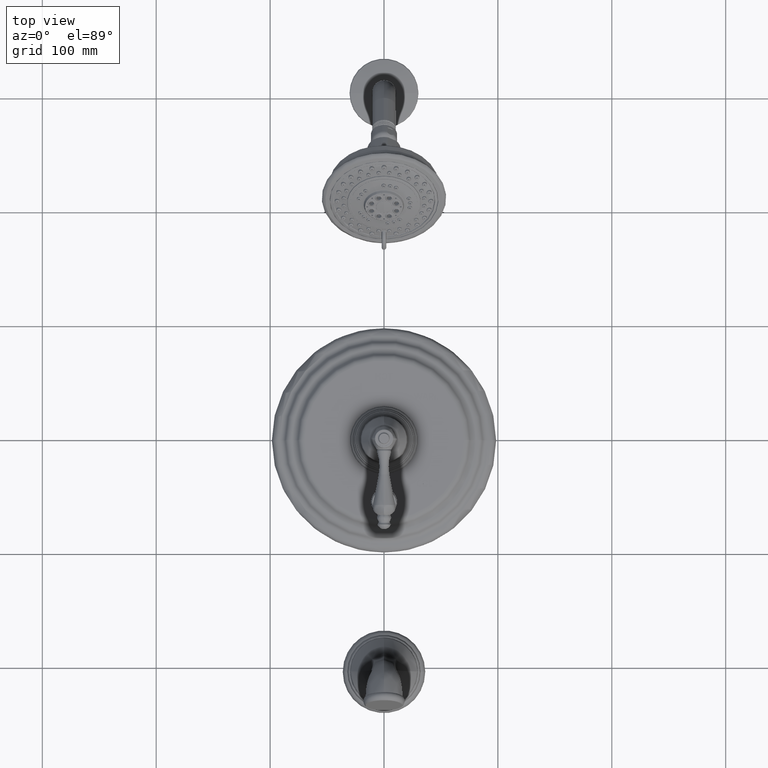
[diagram: clean part render]
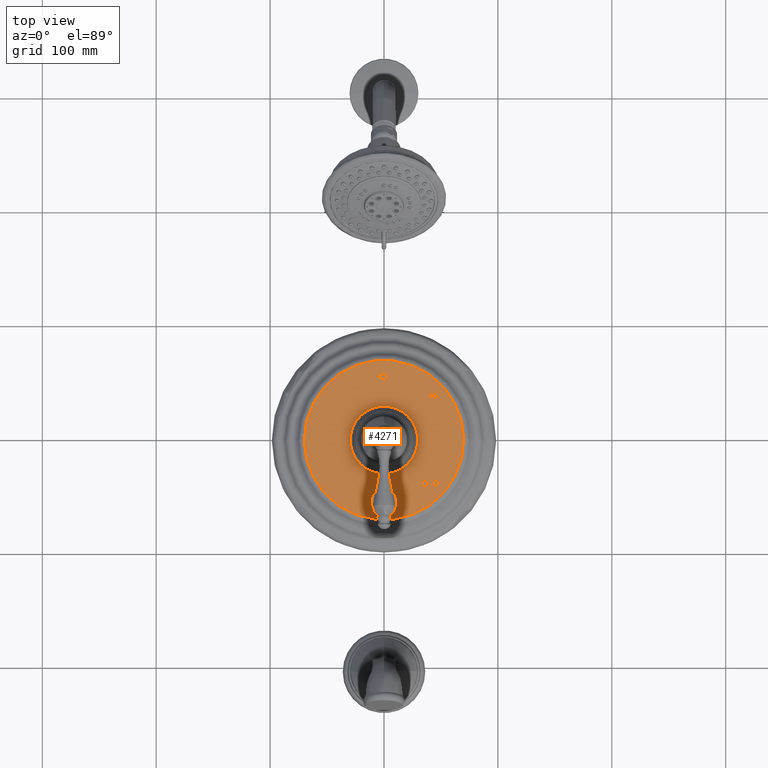
[diagram: same view with one face highlighted and labeled with its STEP entity id]
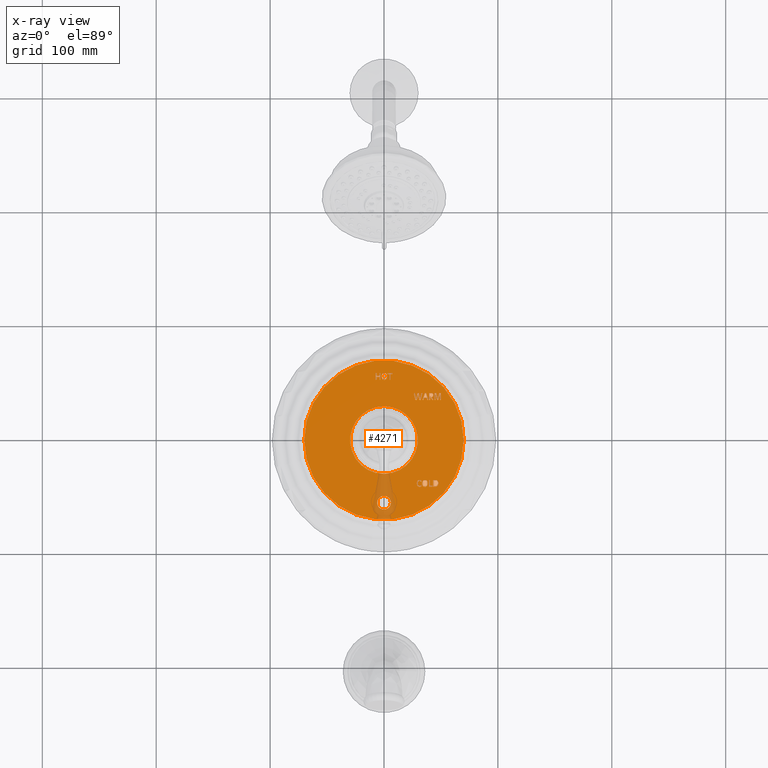
[diagram: x-ray of the same camera — body ghosted, the highlighted face saturated]
A machine part, top view. The second image highlights one B-rep face of the part: STEP entity #4271.
The next image is the same camera in x-ray: the body ghosted, the highlighted face saturated — about 4% of this face is hidden behind the body in this view.
In plain terms, the highlighted planar face has unit normal (0, 0, -1).
Its self-contained STEP definition (entity closure, byte-faithful):
#170=CARTESIAN_POINT('',(0.E0,0.E0,7.54E-1));
#171=DIRECTION('',(0.E0,0.E0,1.E0));
#172=DIRECTION('',(1.E0,0.E0,0.E0));
#173=AXIS2_PLACEMENT_3D('',#170,#171,#172);
#175=CARTESIAN_POINT('',(0.E0,0.E0,7.54E-1));
#176=DIRECTION('',(0.E0,0.E0,-1.E0));
#177=DIRECTION('',(1.E0,0.E0,0.E0));
#178=AXIS2_PLACEMENT_3D('',#175,#176,#177);
#180=DIRECTION('',(0.E0,1.E0,0.E0));
#181=VECTOR('',#180,9.709908440709E-2);
#182=CARTESIAN_POINT('',(-2.562431565225E-1,2.0875E0,7.54E-1));
#183=LINE('',#182,#181);
#184=DIRECTION('',(1.E0,0.E0,0.E0));
#185=VECTOR('',#184,1.029661081731E-1);
#186=CARTESIAN_POINT('',(-2.562431565225E-1,2.184599084407E0,7.54E-1));
#187=LINE('',#186,#185);
#188=DIRECTION('',(0.E0,-1.E0,0.E0));
#189=VECTOR('',#188,9.709908440709E-2);
#190=CARTESIAN_POINT('',(-1.532770483494E-1,2.184599084407E0,7.54E-1));
#191=LINE('',#190,#189);
#192=DIRECTION('',(0.E0,1.E0,0.E0));
#193=VECTOR('',#192,2.25E-1);
#194=CARTESIAN_POINT('',(-1.207151247859E-1,2.0875E0,7.54E-1));
#195=LINE('',#194,#193);
#196=DIRECTION('',(0.E0,-1.E0,0.E0));
#197=VECTOR('',#196,9.504563212395E-2);
#198=CARTESIAN_POINT('',(-1.532770483494E-1,2.3125E0,7.54E-1));
#199=LINE('',#198,#197);
#200=DIRECTION('',(-1.E0,0.E0,0.E0));
#201=VECTOR('',#200,1.029661081731E-1);
#202=CARTESIAN_POINT('',(-1.532770483494E-1,2.217454367876E0,7.54E-1));
#203=LINE('',#202,#201);
#204=DIRECTION('',(0.E0,1.E0,0.E0));
#205=VECTOR('',#204,9.504563212395E-2);
#206=CARTESIAN_POINT('',(-2.562431565225E-1,2.217454367876E0,7.54E-1));
#207=LINE('',#206,#205);
#208=DIRECTION('',(0.E0,-1.E0,0.E0));
#209=VECTOR('',#208,2.25E-1);
#210=CARTESIAN_POINT('',(-2.888050851151E-1,2.3125E0,7.54E-1));
#211=LINE('',#210,#209);
#212=CARTESIAN_POINT('',(1.378619086742E-2,2.082953063957E0,7.54E-1));
#213=CARTESIAN_POINT('',(4.400130224228E-2,2.082953063957E0,7.54E-1));
#214=CARTESIAN_POINT('',(6.717601728439E-2,2.093367014546E0,7.54E-1));
#215=CARTESIAN_POINT('',(8.345697215797E-2,2.114488266565E0,7.54E-1));
#217=CARTESIAN_POINT('',(8.345697215797E-2,2.114488266565E0,7.54E-1));
#218=CARTESIAN_POINT('',(9.973792743683E-2,2.135609519109E0,7.54E-1));
#219=CARTESIAN_POINT('',(1.079517633915E-1,2.165531294048E0,7.54E-1));
#220=CARTESIAN_POINT('',(1.079517633915E-1,2.204546934366E0,7.54E-1));
#222=CARTESIAN_POINT('',(1.079517633915E-1,2.204546934366E0,7.54E-1));
#223=CARTESIAN_POINT('',(1.079517633915E-1,2.243122558296E0,7.54E-1));
#224=CARTESIAN_POINT('',(1.001779706478E-1,2.271137547493E0,7.54E-1));
#225=CARTESIAN_POINT('',(8.488060532274E-2,2.289435829549E0,7.54E-1));
#227=CARTESIAN_POINT('',(8.488060532274E-2,2.289435829549E0,7.54E-1));
#228=CARTESIAN_POINT('',(6.952281606197E-2,2.307806389034E0,7.54E-1));
#229=CARTESIAN_POINT('',(4.576142144203E-2,2.317046934366E0,7.54E-1));
#230=CARTESIAN_POINT('',(1.378619086742E-2,2.317046934366E0,7.54E-1));
#232=CARTESIAN_POINT('',(1.378619086742E-2,2.317046934366E0,7.54E-1));
#233=CARTESIAN_POINT('',(-1.628225731850E-2,2.317046934366E0,7.54E-1));
#234=CARTESIAN_POINT('',(-3.945697236061E-2,2.307219682634E0,7.54E-1));
#235=CARTESIAN_POINT('',(-5.578095692654E-2,2.287748023584E0,7.54E-1));
#237=CARTESIAN_POINT('',(-5.578095692654E-2,2.287748023584E0,7.54E-1));
#238=CARTESIAN_POINT('',(-7.216557252407E-2,2.268204042315E0,7.54E-1));
#239=CARTESIAN_POINT('',(-8.023271846771E-2,2.240482392907E0,7.54E-1));
#240=CARTESIAN_POINT('',(-8.023271846771E-2,2.204546934366E0,7.54E-1));
#242=CARTESIAN_POINT('',(-8.023271846771E-2,2.204546934366E0,7.54E-1));
#243=CARTESIAN_POINT('',(-8.023271846771E-2,2.165531294048E0,7.54E-1));
#244=CARTESIAN_POINT('',(-7.216557252407E-2,2.135609519109E0,7.54E-1));
#245=CARTESIAN_POINT('',(-5.578381939503E-2,2.114452811765E0,7.54E-1));
#247=CARTESIAN_POINT('',(-5.578381939503E-2,2.114452811765E0,7.54E-1));
#248=CARTESIAN_POINT('',(-3.945697236061E-2,2.093367014546E0,7.54E-1));
#249=CARTESIAN_POINT('',(-1.628225731850E-2,2.082953063957E0,7.54E-1));
#250=CARTESIAN_POINT('',(1.378619086742E-2,2.082953063957E0,7.54E-1));
#252=DIRECTION('',(0.E0,1.E0,0.E0));
#253=VECTOR('',#252,1.921447232366E-1);
#254=CARTESIAN_POINT('',(2.244119913578E-1,2.0875E0,7.54E-1));
#255=LINE('',#254,#253);
#256=DIRECTION('',(1.E0,0.E0,0.E0));
#257=VECTOR('',#256,6.351041793823E-2);
#258=CARTESIAN_POINT('',(2.244119913578E-1,2.279644723237E0,7.54E-1));
#259=LINE('',#258,#257);
#260=DIRECTION('',(-1.E0,0.E0,0.E0));
#261=VECTOR('',#260,1.595827728510E-1);
#262=CARTESIAN_POINT('',(2.879224092960E-1,2.3125E0,7.54E-1));
#263=LINE('',#262,#261);
#264=DIRECTION('',(1.E0,0.E0,0.E0));
#265=VECTOR('',#264,6.351044476032E-2);
#266=CARTESIAN_POINT('',(1.283396364450E-1,2.279644723237E0,7.54E-1));
#267=LINE('',#266,#265);
#268=DIRECTION('',(0.E0,-1.E0,0.E0));
#269=VECTOR('',#268,1.921447232366E-1);
#270=CARTESIAN_POINT('',(1.918500812054E-1,2.279644723237E0,7.54E-1));
#271=LINE('',#270,#269);
#272=DIRECTION('',(2.471631249759E-1,9.689738849175E-1,0.E0));
#273=VECTOR('',#272,1.863387326800E-1);
#274=CARTESIAN_POINT('',(1.132885919690E0,1.3875E0,7.54E-1));
#275=LINE('',#274,#273);
#276=DIRECTION('',(2.486403882739E-1,-9.685958689355E-1,0.E0));
#277=VECTOR('',#276,1.864114554958E-1);
#278=CARTESIAN_POINT('',(1.178941983163E0,1.568057365716E0,7.54E-1));
#279=LINE('',#278,#277);
#280=DIRECTION('',(2.350740426959E-1,9.719774660200E-1,0.E0));
#281=VECTOR('',#280,2.314868480659E-1);
#282=CARTESIAN_POINT('',(1.270320727110E0,1.3875E0,7.54E-1));
#283=LINE('',#282,#281);
#284=DIRECTION('',(-2.140864556208E-1,-9.768147160643E-1,0.E0));
#285=VECTOR('',#284,2.021110339290E-1);
#286=CARTESIAN_POINT('',(1.290561936975E0,1.6125E0,7.54E-1));
#287=LINE('',#286,#285);
#288=DIRECTION('',(-2.258108426649E-1,9.741711673700E-1,0.E0));
#289=VECTOR('',#288,2.026594902760E-1);
#290=CARTESIAN_POINT('',(1.247292702079E0,1.415074967779E0,7.54E-1));
#291=LINE('',#290,#289);
#292=DIRECTION('',(-2.251238204180E-1,-9.743301624605E-1,0.E0));
#293=VECTOR('',#292,2.026264194903E-1);
#294=CARTESIAN_POINT('',(1.156500651121E0,1.6125E0,7.54E-1));
#295=LINE('',#294,#293);
#296=DIRECTION('',(-2.154707147848E-1,9.765103025929E-1,0.E0));
#297=VECTOR('',#296,2.021740392258E-1);
#298=CARTESIAN_POINT('',(1.110884617448E0,1.415074967779E0,7.54E-1));
#299=LINE('',#298,#297);
#300=DIRECTION('',(2.356725604190E-1,-9.718325186294E-1,0.E0));
#301=VECTOR('',#300,2.315213739887E-1);
#302=CARTESIAN_POINT('',(1.033293350712E0,1.6125E0,7.54E-1));
#303=LINE('',#302,#301);
#304=DIRECTION('',(2.805984983665E-1,9.598252355062E-1,0.E0));
#305=VECTOR('',#304,6.586311321142E-2);
#306=CARTESIAN_POINT('',(1.364632989645E0,1.3875E0,7.54E-1));
#307=LINE('',#306,#305);
#308=DIRECTION('',(1.E0,0.E0,0.E0));
#309=VECTOR('',#308,9.548564851284E-2);
#310=CARTESIAN_POINT('',(1.383114080310E0,1.450717078149E0,7.54E-1));
#311=LINE('',#310,#309);
#312=DIRECTION('',(2.826484077094E-1,-9.592235806210E-1,0.E0));
#313=VECTOR('',#312,6.590442460599E-2);
#314=CARTESIAN_POINT('',(1.478599728823E0,1.450717078149E0,7.54E-1));
#315=LINE('',#314,#313);
#316=DIRECTION('',(-3.025880960358E-1,9.531214215080E-1,0.E0));
#317=VECTOR('',#316,2.360664600781E-1);
#318=CARTESIAN_POINT('',(1.530082799673E0,1.3875E0,7.54E-1));
#319=LINE('',#318,#317);
#320=DIRECTION('',(-3.025880960358E-1,-9.531214215080E-1,0.E0));
#321=VECTOR('',#320,2.360664600781E-1);
#322=CARTESIAN_POINT('',(1.403941969752E0,1.6125E0,7.54E-1));
#323=LINE('',#322,#321);
#324=DIRECTION('',(0.E0,1.E0,0.E0));
#325=VECTOR('',#324,1.132333829999E-1);
#326=CARTESIAN_POINT('',(1.592419804811E0,1.3875E0,7.54E-1));
#327=LINE('',#326,#325);
#328=DIRECTION('',(5.767248157452E-1,-8.169384841613E-1,0.E0));
#329=VECTOR('',#328,1.386069884027E-1);
#330=CARTESIAN_POINT('',(1.592419804811E0,1.500733383E0,7.54E-1));
#331=LINE('',#330,#329);
#332=DIRECTION('',(-5.856708214231E-1,8.105490046466E-1,0.E0));
#333=VECTOR('',#332,1.187084774229E-1);
#334=CARTESIAN_POINT('',(1.710053445578E0,1.3875E0,7.54E-1));
#335=LINE('',#334,#333);
#336=CARTESIAN_POINT('',(1.640529354095E0,1.483719038218E0,7.54E-1));
#337=CARTESIAN_POINT('',(1.663264025927E0,1.483865708113E0,7.54E-1));
#338=CARTESIAN_POINT('',(1.680571730614E0,1.489586048573E0,7.54E-1));
#339=CARTESIAN_POINT('',(1.692269027760E0,1.501064029419E0,7.54E-1));
#341=CARTESIAN_POINT('',(1.692269027760E0,1.501064029419E0,7.54E-1));
#342=CARTESIAN_POINT('',(1.704039772034E0,1.512614080310E0,7.54E-1));
#343=CARTESIAN_POINT('',(1.710053445578E0,1.530068448186E0,7.54E-1));
#344=CARTESIAN_POINT('',(1.710053445578E0,1.553243149817E0,7.54E-1));
#346=CARTESIAN_POINT('',(1.710053445578E0,1.553243149817E0,7.54E-1));
#347=CARTESIAN_POINT('',(1.710053445578E0,1.572164270282E0,7.54E-1));
#348=CARTESIAN_POINT('',(1.704333098412E0,1.586831809580E0,7.54E-1));
#349=CARTESIAN_POINT('',(1.693152421370E0,1.597062511531E0,7.54E-1));
#351=CARTESIAN_POINT('',(1.693152421370E0,1.597062511531E0,7.54E-1));
#352=CARTESIAN_POINT('',(1.681891806602E0,1.607366359234E0,7.54E-1));
#353=CARTESIAN_POINT('',(1.665904177904E0,1.6125E0,7.54E-1));
#354=CARTESIAN_POINT('',(1.645076288462E0,1.6125E0,7.54E-1));
#356=DIRECTION('',(0.E0,-1.E0,0.E0));
#357=VECTOR('',#356,2.25E-1);
#358=CARTESIAN_POINT('',(1.559857894659E0,1.6125E0,7.54E-1));
#359=LINE('',#358,#357);
#360=DIRECTION('',(0.E0,1.E0,0.E0));
#361=VECTOR('',#360,2.022653147578E-1);
#362=CARTESIAN_POINT('',(1.781777699471E0,1.3875E0,7.54E-1));
#363=LINE('',#362,#361);
#364=DIRECTION('',(2.779397959020E-1,-9.605984956546E-1,0.E0));
#365=VECTOR('',#364,2.105617650588E-1);
#366=CARTESIAN_POINT('',(1.781777699471E0,1.589765314758E0,7.54E-1));
#367=LINE('',#366,#365);
#368=DIRECTION('',(2.701996726704E-1,9.628043087195E-1,0.E0));
#369=VECTOR('',#368,2.100793618454E-1);
#370=CARTESIAN_POINT('',(1.876089962006E0,1.3875E0,7.54E-1));
#371=LINE('',#370,#369);
#372=DIRECTION('',(7.976409810612E-3,-9.999681879373E-1,0.E0));
#373=VECTOR('',#372,2.022717494394E-1);
#374=CARTESIAN_POINT('',(1.932853336811E0,1.589765314758E0,7.54E-1));
#375=LINE('',#374,#373);
#376=DIRECTION('',(0.E0,1.E0,0.E0));
#377=VECTOR('',#376,2.25E-1);
#378=CARTESIAN_POINT('',(1.967028649330E0,1.3875E0,7.54E-1));
#379=LINE('',#378,#377);
#380=DIRECTION('',(-2.528694129050E-1,-9.675004186134E-1,0.E0));
#381=VECTOR('',#380,1.867741231311E-1);
#382=CARTESIAN_POINT('',(1.907185132980E0,1.6125E0,7.54E-1));
#383=LINE('',#382,#381);
#384=DIRECTION('',(-2.711076405589E-1,9.625490362733E-1,0.E0));
#385=VECTOR('',#384,1.877348950606E-1);
#386=CARTESIAN_POINT('',(1.859955670118E0,1.431795957685E0,7.54E-1));
#387=LINE('',#386,#385);
#388=DIRECTION('',(0.E0,-1.E0,0.E0));
#389=VECTOR('',#388,2.25E-1);
#390=CARTESIAN_POINT('',(1.749215789318E0,1.6125E0,7.54E-1));
#391=LINE('',#390,#389);
#392=DIRECTION('',(0.E0,1.E0,0.E0));
#393=VECTOR('',#392,3.710886798799E-2);
#394=CARTESIAN_POINT('',(1.295083437383E0,-1.586685136333E0,7.54E-1));
#395=LINE('',#394,#393);
#396=CARTESIAN_POINT('',(1.295083437383E0,-1.549576268345E0,7.54E-1));
#397=CARTESIAN_POINT('',(1.281882664084E0,-1.564097131044E0,7.54E-1));
#398=CARTESIAN_POINT('',(1.270441983163E0,-1.574071056023E0,7.54E-1));
#399=CARTESIAN_POINT('',(1.261035918825E0,-1.579612613773E0,7.54E-1));
#401=CARTESIAN_POINT('',(1.261035918825E0,-1.579612613773E0,7.54E-1));
#402=CARTESIAN_POINT('',(1.251520862699E0,-1.585218383744E0,7.54E-1));
#403=CARTESIAN_POINT('',(1.240960241377E0,-1.587858539075E0,7.54E-1));
#404=CARTESIAN_POINT('',(1.229372883856E0,-1.587858539075E0,7.54E-1));
#406=CARTESIAN_POINT('',(1.229372883856E0,-1.587858539075E0,7.54E-1));
#407=CARTESIAN_POINT('',(1.210158410192E0,-1.587858539075E0,7.54E-1));
#408=CARTESIAN_POINT('',(1.195344200999E0,-1.580231419578E0,7.54E-1));
#409=CARTESIAN_POINT('',(1.184879900615E0,-1.564717914511E0,7.54E-1));
#411=CARTESIAN_POINT('',(1.184879900615E0,-1.564717914511E0,7.54E-1));
#412=CARTESIAN_POINT('',(1.174369621545E0,-1.549136245251E0,7.54E-1));
#413=CARTESIAN_POINT('',(1.169235984132E0,-1.527134943008E0,7.54E-1));
#414=CARTESIAN_POINT('',(1.169235984132E0,-1.498533247411E0,7.54E-1));
#416=CARTESIAN_POINT('',(1.169235984132E0,-1.498533247411E0,7.54E-1));
#417=CARTESIAN_POINT('',(1.169235984132E0,-1.472131687403E0,7.54E-1));
#418=CARTESIAN_POINT('',(1.174369621545E0,-1.451743800938E0,7.54E-1));
#419=CARTESIAN_POINT('',(1.184882326665E0,-1.437334786480E0,7.54E-1));
#421=CARTESIAN_POINT('',(1.184882326665E0,-1.437334786480E0,7.54E-1));
#422=CARTESIAN_POINT('',(1.195344200999E0,-1.422995442152E0,7.54E-1));
#423=CARTESIAN_POINT('',(1.210158410192E0,-1.415808342397E0,7.54E-1));
#424=CARTESIAN_POINT('',(1.229372883856E0,-1.415808342397E0,7.54E-1));
#426=CARTESIAN_POINT('',(1.229372883856E0,-1.415808342397E0,7.54E-1));
#427=CARTESIAN_POINT('',(1.243747069955E0,-1.415808342397E0,7.54E-1));
#428=CARTESIAN_POINT('',(1.256654503465E0,-1.419181877375E0,7.54E-1));
#429=CARTESIAN_POINT('',(1.268095175639E0,-1.425928939420E0,7.54E-1));
#431=CARTESIAN_POINT('',(1.268095175639E0,-1.425928939420E0,7.54E-1));
#432=CARTESIAN_POINT('',(1.279535851896E0,-1.432676003873E0,7.54E-1));
#433=CARTESIAN_POINT('',(1.288483057439E0,-1.442209902406E0,7.54E-1));
#434=CARTESIAN_POINT('',(1.295083437383E0,-1.454530642927E0,7.54E-1));
#436=DIRECTION('',(0.E0,1.E0,0.E0));
#437=VECTOR('',#436,4.458931088448E-2);
#438=CARTESIAN_POINT('',(1.295083437383E0,-1.454530642927E0,7.54E-1));
#439=LINE('',#438,#437);
#440=CARTESIAN_POINT('',(1.295083437383E0,-1.409941332042E0,7.54E-1));
#441=CARTESIAN_POINT('',(1.287456321239E0,-1.400847463310E0,7.54E-1));
#442=CARTESIAN_POINT('',(1.278215775907E0,-1.394100393355E0,7.54E-1));
#443=CARTESIAN_POINT('',(1.267068450476E0,-1.389700129787E0,7.54E-1));
#445=CARTESIAN_POINT('',(1.267068450476E0,-1.389700129787E0,7.54E-1));
#446=CARTESIAN_POINT('',(1.255921120465E0,-1.385299864411E0,7.54E-1));
#447=CARTESIAN_POINT('',(1.242867010355E0,-1.382953065634E0,7.54E-1));
#448=CARTESIAN_POINT('',(1.227759454668E0,-1.382953065634E0,7.54E-1));
#450=CARTESIAN_POINT('',(1.227759454668E0,-1.382953065634E0,7.54E-1));
#451=CARTESIAN_POINT('',(1.198571059376E0,-1.382953065634E0,7.54E-1));
#452=CARTESIAN_POINT('',(1.176129727334E0,-1.392780317366E0,7.54E-1));
#453=CARTESIAN_POINT('',(1.160288791423E0,-1.412288133074E0,7.54E-1));
#455=CARTESIAN_POINT('',(1.160288791423E0,-1.412288133074E0,7.54E-1));
#456=CARTESIAN_POINT('',(1.144447848283E0,-1.431795957685E0,7.54E-1));
#457=CARTESIAN_POINT('',(1.136674054701E0,-1.459517607093E0,7.54E-1));
#458=CARTESIAN_POINT('',(1.136674054701E0,-1.495453065634E0,7.54E-1));
#460=CARTESIAN_POINT('',(1.136674054701E0,-1.495453065634E0,7.54E-1));
#461=CARTESIAN_POINT('',(1.136674054701E0,-1.534468705952E0,7.54E-1));
#462=CARTESIAN_POINT('',(1.144447848283E0,-1.564390480891E0,7.54E-1));
#463=CARTESIAN_POINT('',(1.160288788311E0,-1.585511733843E0,7.54E-1));
#465=CARTESIAN_POINT('',(1.160288788311E0,-1.585511733843E0,7.54E-1));
#466=CARTESIAN_POINT('',(1.176129727334E0,-1.606632985454E0,7.54E-1));
#467=CARTESIAN_POINT('',(1.198571059376E0,-1.617046936043E0,7.54E-1));
#468=CARTESIAN_POINT('',(1.227759454668E0,-1.617046936043E0,7.54E-1));
#470=CARTESIAN_POINT('',(1.227759454668E0,-1.617046936043E0,7.54E-1));
#471=CARTESIAN_POINT('',(1.241253581166E0,-1.617046936043E0,7.54E-1));
#472=CARTESIAN_POINT('',(1.254014338076E0,-1.614260104322E0,7.54E-1));
#473=CARTESIAN_POINT('',(1.265721021855E0,-1.609065262664E0,7.54E-1));
#475=CARTESIAN_POINT('',(1.265721021855E0,-1.609065262664E0,7.54E-1));
#476=CARTESIAN_POINT('',(1.277482392907E0,-1.603846153524E0,7.54E-1));
#477=CARTESIAN_POINT('',(1.287309644639E0,-1.596365709789E0,7.54E-1));
#478=CARTESIAN_POINT('',(1.295083437383E0,-1.586685136333E0,7.54E-1));
#480=CARTESIAN_POINT('',(1.414917200327E0,-1.617046936043E0,7.54E-1));
#481=CARTESIAN_POINT('',(1.445132338524E0,-1.617046936043E0,7.54E-1));
#482=CARTESIAN_POINT('',(1.468307053566E0,-1.606632985454E0,7.54E-1));
#483=CARTESIAN_POINT('',(1.484588008440E0,-1.585511733435E0,7.54E-1));
#485=CARTESIAN_POINT('',(1.484588008440E0,-1.585511733435E0,7.54E-1));
#486=CARTESIAN_POINT('',(1.500868963718E0,-1.564390480891E0,7.54E-1));
#487=CARTESIAN_POINT('',(1.509082799673E0,-1.534468705952E0,7.54E-1));
#488=CARTESIAN_POINT('',(1.509082799673E0,-1.495453065634E0,7.54E-1));
#490=CARTESIAN_POINT('',(1.509082799673E0,-1.495453065634E0,7.54E-1));
#491=CARTESIAN_POINT('',(1.509082799673E0,-1.456877441704E0,7.54E-1));
#492=CARTESIAN_POINT('',(1.501309006929E0,-1.428862452507E0,7.54E-1));
#493=CARTESIAN_POINT('',(1.486011630539E0,-1.410564157215E0,7.54E-1));
#495=CARTESIAN_POINT('',(1.486011630539E0,-1.410564157215E0,7.54E-1));
#496=CARTESIAN_POINT('',(1.470653852344E0,-1.392193610966E0,7.54E-1));
#497=CARTESIAN_POINT('',(1.446892430902E0,-1.382953065634E0,7.54E-1));
#498=CARTESIAN_POINT('',(1.414917200327E0,-1.382953065634E0,7.54E-1));
#500=CARTESIAN_POINT('',(1.414917200327E0,-1.382953065634E0,7.54E-1));
#501=CARTESIAN_POINT('',(1.384848752141E0,-1.382953065634E0,7.54E-1));
#502=CARTESIAN_POINT('',(1.361674063921E0,-1.392780317366E0,7.54E-1));
#503=CARTESIAN_POINT('',(1.345350069889E0,-1.412251979724E0,7.54E-1));
#505=CARTESIAN_POINT('',(1.345350069889E0,-1.412251979724E0,7.54E-1));
#506=CARTESIAN_POINT('',(1.328965450346E0,-1.431795957685E0,7.54E-1));
#507=CARTESIAN_POINT('',(1.320898304403E0,-1.459517607093E0,7.54E-1));
#508=CARTESIAN_POINT('',(1.320898304403E0,-1.495453065634E0,7.54E-1));
#510=CARTESIAN_POINT('',(1.320898304403E0,-1.495453065634E0,7.54E-1));
#511=CARTESIAN_POINT('',(1.320898304403E0,-1.534468705952E0,7.54E-1));
#512=CARTESIAN_POINT('',(1.328965450346E0,-1.564390480891E0,7.54E-1));
#513=CARTESIAN_POINT('',(1.345347207689E0,-1.585547185002E0,7.54E-1));
#515=CARTESIAN_POINT('',(1.345347207689E0,-1.585547185002E0,7.54E-1));
#516=CARTESIAN_POINT('',(1.361674063921E0,-1.606632985454E0,7.54E-1));
#517=CARTESIAN_POINT('',(1.384848752141E0,-1.617046936043E0,7.54E-1));
#518=CARTESIAN_POINT('',(1.414917200327E0,-1.617046936043E0,7.54E-1));
#520=DIRECTION('',(1.E0,0.E0,0.E0));
#521=VECTOR('',#520,1.173402875662E-1);
#522=CARTESIAN_POINT('',(1.553378757358E0,-1.6125E0,7.54E-1));
#523=LINE('',#522,#521);
#524=DIRECTION('',(-1.E0,0.E0,0.E0));
#525=VECTOR('',#524,8.477835059166E-2);
#526=CARTESIAN_POINT('',(1.670719044924E0,-1.579644719884E0,7.54E-1));
#527=LINE('',#526,#525);
#528=DIRECTION('',(0.E0,1.E0,0.E0));
#529=VECTOR('',#528,1.921447198838E-1);
#530=CARTESIAN_POINT('',(1.585940694332E0,-1.579644719884E0,7.54E-1));
#531=LINE('',#530,#529);
#532=DIRECTION('',(0.E0,-1.E0,0.E0));
#533=VECTOR('',#532,2.25E-1);
#534=CARTESIAN_POINT('',(1.553378757358E0,-1.3875E0,7.54E-1));
#535=LINE('',#534,#533);
#536=CARTESIAN_POINT('',(1.772071730614E0,-1.6125E0,7.54E-1));
#537=CARTESIAN_POINT('',(1.803753607988E0,-1.6125E0,7.54E-1));
#538=CARTESIAN_POINT('',(1.828835051775E0,-1.602086049411E0,7.54E-1));
#539=CARTESIAN_POINT('',(1.847457946183E0,-1.580960492826E0,7.54E-1));
#541=CARTESIAN_POINT('',(1.847457946183E0,-1.580960492826E0,7.54E-1));
#542=CARTESIAN_POINT('',(1.865943949938E0,-1.559990223125E0,7.54E-1));
#543=CARTESIAN_POINT('',(1.875331145048E0,-1.531535200775E0,7.54E-1));
#544=CARTESIAN_POINT('',(1.875331145048E0,-1.495599742234E0,7.54E-1));
#546=CARTESIAN_POINT('',(1.875331145048E0,-1.495599742234E0,7.54E-1));
#547=CARTESIAN_POINT('',(1.875331145048E0,-1.458490870893E0,7.54E-1));
#548=CARTESIAN_POINT('',(1.867850732327E0,-1.431649281085E0,7.54E-1));
#549=CARTESIAN_POINT('',(1.852805563462E0,-1.414120935881E0,7.54E-1));
#551=CARTESIAN_POINT('',(1.852805563462E0,-1.414120935881E0,7.54E-1));
#552=CARTESIAN_POINT('',(1.837635594130E0,-1.396447192132E0,7.54E-1));
#553=CARTESIAN_POINT('',(1.814314215899E0,-1.3875E0,7.54E-1));
#554=CARTESIAN_POINT('',(1.782925664902E0,-1.3875E0,7.54E-1));
#556=DIRECTION('',(0.E0,-1.E0,0.E0));
#557=VECTOR('',#556,2.25E-1);
#558=CARTESIAN_POINT('',(1.701520835876E0,-1.3875E0,7.54E-1));
#559=LINE('',#558,#557);
#560=CARTESIAN_POINT('',(0.E0,0.E0,7.54E-1));
#561=DIRECTION('',(0.E0,0.E0,-1.E0));
#562=DIRECTION('',(0.E0,1.E0,0.E0));
#563=AXIS2_PLACEMENT_3D('',#560,#561,#562);
#565=CARTESIAN_POINT('',(0.E0,0.E0,7.54E-1));
#566=DIRECTION('',(0.E0,0.E0,-1.E0));
#567=DIRECTION('',(0.E0,-1.E0,0.E0));
#568=AXIS2_PLACEMENT_3D('',#565,#566,#567);
#570=CARTESIAN_POINT('',(0.E0,-2.17E0,7.54E-1));
#571=DIRECTION('',(0.E0,0.E0,1.E0));
#572=DIRECTION('',(-1.E0,0.E0,0.E0));
#573=AXIS2_PLACEMENT_3D('',#570,#571,#572);
#575=CARTESIAN_POINT('',(0.E0,-2.17E0,7.54E-1));
#576=DIRECTION('',(0.E0,0.E0,1.E0));
#577=DIRECTION('',(1.E0,0.E0,0.E0));
#578=AXIS2_PLACEMENT_3D('',#575,#576,#577);
#684=DIRECTION('',(-1.E0,0.E0,0.E0));
#685=VECTOR('',#684,3.256192859262E-2);
#686=CARTESIAN_POINT('',(-2.562431565225E-1,2.0875E0,7.54E-1));
#687=LINE('',#686,#685);
#732=DIRECTION('',(1.E0,0.E0,0.E0));
#733=VECTOR('',#732,3.256192859262E-2);
#734=CARTESIAN_POINT('',(-2.888050851151E-1,2.3125E0,7.54E-1));
#735=LINE('',#734,#733);
#756=DIRECTION('',(1.E0,0.E0,0.E0));
#757=VECTOR('',#756,3.256192356348E-2);
#758=CARTESIAN_POINT('',(-1.532770483494E-1,2.3125E0,7.54E-1));
#759=LINE('',#758,#757);
#772=DIRECTION('',(-1.E0,0.E0,0.E0));
#773=VECTOR('',#772,3.256192356348E-2);
#774=CARTESIAN_POINT('',(-1.207151247859E-1,2.0875E0,7.54E-1));
#775=LINE('',#774,#773);
#1027=DIRECTION('',(-1.E0,0.E0,0.E0));
#1028=VECTOR('',#1027,3.256191015244E-2);
#1029=CARTESIAN_POINT('',(2.244119913578E-1,2.0875E0,7.54E-1));
#1030=LINE('',#1029,#1028);
#1067=DIRECTION('',(0.E0,1.E0,0.E0));
#1068=VECTOR('',#1067,3.285527676344E-2);
#1069=CARTESIAN_POINT('',(1.283396364450E-1,2.279644723237E0,7.54E-1));
#1070=LINE('',#1069,#1068);
#1083=DIRECTION('',(0.E0,-1.E0,0.E0));
#1084=VECTOR('',#1083,3.285527676344E-2);
#1085=CARTESIAN_POINT('',(2.879224092960E-1,2.3125E0,7.54E-1));
#1086=LINE('',#1085,#1084);
#1103=DIRECTION('',(-1.E0,0.E0,0.E0));
#1104=VECTOR('',#1103,4.502933397889E-2);
#1105=CARTESIAN_POINT('',(1.132885919690E0,1.3875E0,7.54E-1));
#1106=LINE('',#1105,#1104);
#1151=DIRECTION('',(1.E0,0.E0,0.E0));
#1152=VECTOR('',#1151,3.402868199337E-2);
#1153=CARTESIAN_POINT('',(1.033293350712E0,1.6125E0,7.54E-1));
#1154=LINE('',#1153,#1152);
#1171=DIRECTION('',(1.E0,0.E0,0.E0));
#1172=VECTOR('',#1171,4.502934068441E-2);
#1173=CARTESIAN_POINT('',(1.156500651121E0,1.6125E0,7.54E-1));
#1174=LINE('',#1173,#1172);
#1191=DIRECTION('',(1.E0,0.E0,0.E0));
#1192=VECTOR('',#1191,3.417533934116E-2);
#1193=CARTESIAN_POINT('',(1.290561936975E0,1.6125E0,7.54E-1));
#1194=LINE('',#1193,#1192);
#1207=DIRECTION('',(-1.E0,0.E0,0.E0));
#1208=VECTOR('',#1207,4.502932727337E-2);
#1209=CARTESIAN_POINT('',(1.270320727110E0,1.3875E0,7.54E-1));
#1210=LINE('',#1209,#1208);
#1227=DIRECTION('',(-1.E0,0.E0,0.E0));
#1228=VECTOR('',#1227,3.212192058563E-2);
#1229=CARTESIAN_POINT('',(1.364632989645E0,1.3875E0,7.54E-1));
#1230=LINE('',#1229,#1228);
#1275=DIRECTION('',(1.E0,0.E0,0.E0));
#1276=VECTOR('',#1275,5.470992922783E-2);
#1277=CARTESIAN_POINT('',(1.403941969752E0,1.6125E0,7.54E-1));
#1278=LINE('',#1277,#1276);
#1291=DIRECTION('',(-1.E0,0.E0,0.E0));
#1292=VECTOR('',#1291,3.285529017448E-2);
#1293=CARTESIAN_POINT('',(1.530082799673E0,1.3875E0,7.54E-1));
#1294=LINE('',#1293,#1292);
#1339=DIRECTION('',(-1.E0,0.E0,0.E0));
#1340=VECTOR('',#1339,3.256191015244E-2);
#1341=CARTESIAN_POINT('',(1.592419804811E0,1.3875E0,7.54E-1));
#1342=LINE('',#1341,#1340);
#1442=DIRECTION('',(1.E0,0.E0,0.E0));
#1443=VECTOR('',#1442,8.521839380264E-2);
#1444=CARTESIAN_POINT('',(1.559857894659E0,1.6125E0,7.54E-1));
#1445=LINE('',#1444,#1443);
#1474=DIRECTION('',(-1.E0,0.E0,0.E0));
#1475=VECTOR('',#1474,3.769555091858E-2);
#1476=CARTESIAN_POINT('',(1.710053445578E0,1.3875E0,7.54E-1));
#1477=LINE('',#1476,#1475);
#1558=DIRECTION('',(-1.E0,0.E0,0.E0));
#1559=VECTOR('',#1558,3.256191015243E-2);
#1560=CARTESIAN_POINT('',(1.781777699471E0,1.3875E0,7.54E-1));
#1561=LINE('',#1560,#1559);
#1606=DIRECTION('',(1.E0,0.E0,0.E0));
#1607=VECTOR('',#1606,5.984351634979E-2);
#1608=CARTESIAN_POINT('',(1.749215789318E0,1.6125E0,7.54E-1));
#1609=LINE('',#1608,#1607);
#1626=DIRECTION('',(1.E0,0.E0,0.E0));
#1627=VECTOR('',#1626,5.984351634979E-2);
#1628=CARTESIAN_POINT('',(1.907185132980E0,1.6125E0,7.54E-1));
#1629=LINE('',#1628,#1627);
#1642=DIRECTION('',(-1.E0,0.E0,0.E0));
#1643=VECTOR('',#1642,3.256191015244E-2);
#1644=CARTESIAN_POINT('',(1.967028649330E0,1.3875E0,7.54E-1));
#1645=LINE('',#1644,#1643);
#1662=DIRECTION('',(-1.E0,0.E0,0.E0));
#1663=VECTOR('',#1662,3.578876852989E-2);
#1664=CARTESIAN_POINT('',(1.876089962006E0,1.3875E0,7.54E-1));
#1665=LINE('',#1664,#1663);
#2114=DIRECTION('',(1.E0,0.E0,0.E0));
#2115=VECTOR('',#2114,3.256193697453E-2);
#2116=CARTESIAN_POINT('',(1.553378757358E0,-1.3875E0,7.54E-1));
#2117=LINE('',#2116,#2115);
#2150=DIRECTION('',(0.E0,-1.E0,0.E0));
#2151=VECTOR('',#2150,3.285528011620E-2);
#2152=CARTESIAN_POINT('',(1.670719044924E0,-1.579644719884E0,7.54E-1));
#2153=LINE('',#2152,#2151);
#2162=DIRECTION('',(-1.E0,0.E0,0.E0));
#2163=VECTOR('',#2162,7.055089473724E-2);
#2164=CARTESIAN_POINT('',(1.772071730614E0,-1.6125E0,7.54E-1));
#2165=LINE('',#2164,#2163);
#2256=DIRECTION('',(1.E0,0.E0,0.E0));
#2257=VECTOR('',#2256,8.140482902527E-2);
#2258=CARTESIAN_POINT('',(1.701520835876E0,-1.3875E0,7.54E-1));
#2259=LINE('',#2258,#2257);
#3099=CARTESIAN_POINT('',(2.753578185696E0,0.E0,7.54E-1));
#3100=VERTEX_POINT('',#3099);
#3109=CARTESIAN_POINT('',(-2.753578185696E0,0.E0,7.54E-1));
#3110=VERTEX_POINT('',#3109);
#3337=CARTESIAN_POINT('',(-2.562431565225E-1,2.0875E0,7.54E-1));
#3338=CARTESIAN_POINT('',(-2.562431565225E-1,2.184599084407E0,7.54E-1));
#3339=VERTEX_POINT('',#3337);
#3340=VERTEX_POINT('',#3338);
#3341=CARTESIAN_POINT('',(-1.532770483494E-1,2.184599084407E0,7.54E-1));
#3342=VERTEX_POINT('',#3341);
#3343=CARTESIAN_POINT('',(-1.532770483494E-1,2.0875E0,7.54E-1));
#3344=VERTEX_POINT('',#3343);
#3345=CARTESIAN_POINT('',(-1.207151247859E-1,2.0875E0,7.54E-1));
#3346=CARTESIAN_POINT('',(-1.207151247859E-1,2.3125E0,7.54E-1));
#3347=VERTEX_POINT('',#3345);
#3348=VERTEX_POINT('',#3346);
#3349=CARTESIAN_POINT('',(-1.532770483494E-1,2.3125E0,7.54E-1));
#3350=CARTESIAN_POINT('',(-1.532770483494E-1,2.217454367876E0,7.54E-1));
#3351=VERTEX_POINT('',#3349);
#3352=VERTEX_POINT('',#3350);
#3353=CARTESIAN_POINT('',(-2.562431565225E-1,2.217454367876E0,7.54E-1));
#3354=VERTEX_POINT('',#3353);
#3355=CARTESIAN_POINT('',(-2.562431565225E-1,2.3125E0,7.54E-1));
#3356=VERTEX_POINT('',#3355);
#3357=CARTESIAN_POINT('',(-2.888050851151E-1,2.3125E0,7.54E-1));
#3358=CARTESIAN_POINT('',(-2.888050851151E-1,2.0875E0,7.54E-1));
#3359=VERTEX_POINT('',#3357);
#3360=VERTEX_POINT('',#3358);
#3361=VERTEX_POINT('',#212);
#3362=VERTEX_POINT('',#215);
#3363=VERTEX_POINT('',#220);
#3364=VERTEX_POINT('',#225);
#3365=VERTEX_POINT('',#230);
#3366=VERTEX_POINT('',#235);
#3367=VERTEX_POINT('',#240);
#3368=VERTEX_POINT('',#245);
#3377=CARTESIAN_POINT('',(2.244119913578E-1,2.0875E0,7.54E-1));
#3378=CARTESIAN_POINT('',(2.244119913578E-1,2.279644723237E0,7.54E-1));
#3379=VERTEX_POINT('',#3377);
#3380=VERTEX_POINT('',#3378);
#3381=CARTESIAN_POINT('',(2.879224092960E-1,2.279644723237E0,7.54E-1));
#3382=VERTEX_POINT('',#3381);
#3383=CARTESIAN_POINT('',(2.879224092960E-1,2.3125E0,7.54E-1));
#3384=CARTESIAN_POINT('',(1.283396364450E-1,2.3125E0,7.54E-1));
#3385=VERTEX_POINT('',#3383);
#3386=VERTEX_POINT('',#3384);
#3387=CARTESIAN_POINT('',(1.283396364450E-1,2.279644723237E0,7.54E-1));
#3388=CARTESIAN_POINT('',(1.918500812054E-1,2.279644723237E0,7.54E-1));
#3389=VERTEX_POINT('',#3387);
#3390=VERTEX_POINT('',#3388);
#3391=CARTESIAN_POINT('',(1.918500812054E-1,2.0875E0,7.54E-1));
#3392=VERTEX_POINT('',#3391);
#3393=CARTESIAN_POINT('',(1.132885919690E0,1.3875E0,7.54E-1));
#3394=CARTESIAN_POINT('',(1.178941983163E0,1.568057365716E0,7.54E-1));
#3395=VERTEX_POINT('',#3393);
#3396=VERTEX_POINT('',#3394);
#3397=CARTESIAN_POINT('',(1.225291399837E0,1.3875E0,7.54E-1));
#3398=VERTEX_POINT('',#3397);
#3399=CARTESIAN_POINT('',(1.270320727110E0,1.3875E0,7.54E-1));
#3400=CARTESIAN_POINT('',(1.324737276316E0,1.6125E0,7.54E-1));
#3401=VERTEX_POINT('',#3399);
#3402=VERTEX_POINT('',#3400);
#3403=CARTESIAN_POINT('',(1.290561936975E0,1.6125E0,7.54E-1));
#3404=CARTESIAN_POINT('',(1.247292702079E0,1.415074967779E0,7.54E-1));
#3405=VERTEX_POINT('',#3403);
#3406=VERTEX_POINT('',#3404);
#3407=CARTESIAN_POINT('',(1.201529991806E0,1.6125E0,7.54E-1));
#3408=VERTEX_POINT('',#3407);
#3409=CARTESIAN_POINT('',(1.156500651121E0,1.6125E0,7.54E-1));
#3410=CARTESIAN_POINT('',(1.110884617448E0,1.415074967779E0,7.54E-1));
#3411=VERTEX_POINT('',#3409);
#3412=VERTEX_POINT('',#3410);
#3413=CARTESIAN_POINT('',(1.067322032705E0,1.6125E0,7.54E-1));
#3414=VERTEX_POINT('',#3413);
#3415=CARTESIAN_POINT('',(1.033293350712E0,1.6125E0,7.54E-1));
#3416=CARTESIAN_POINT('',(1.087856585711E0,1.3875E0,7.54E-1));
#3417=VERTEX_POINT('',#3415);
#3418=VERTEX_POINT('',#3416);
#3419=CARTESIAN_POINT('',(1.364632989645E0,1.3875E0,7.54E-1));
#3420=CARTESIAN_POINT('',(1.383114080310E0,1.450717078149E0,7.54E-1));
#3421=VERTEX_POINT('',#3419);
#3422=VERTEX_POINT('',#3420);
#3423=CARTESIAN_POINT('',(1.478599728823E0,1.450717078149E0,7.54E-1));
#3424=VERTEX_POINT('',#3423);
#3425=CARTESIAN_POINT('',(1.497227509499E0,1.3875E0,7.54E-1));
#3426=VERTEX_POINT('',#3425);
#3427=CARTESIAN_POINT('',(1.530082799673E0,1.3875E0,7.54E-1));
#3428=CARTESIAN_POINT('',(1.458651898980E0,1.6125E0,7.54E-1));
#3429=VERTEX_POINT('',#3427);
#3430=VERTEX_POINT('',#3428);
#3431=CARTESIAN_POINT('',(1.403941969752E0,1.6125E0,7.54E-1));
#3432=CARTESIAN_POINT('',(1.332511069059E0,1.3875E0,7.54E-1));
#3433=VERTEX_POINT('',#3431);
#3434=VERTEX_POINT('',#3432);
#3441=CARTESIAN_POINT('',(1.592419804811E0,1.3875E0,7.54E-1));
#3442=CARTESIAN_POINT('',(1.592419804811E0,1.500733383E0,7.54E-1));
#3443=VERTEX_POINT('',#3441);
#3444=VERTEX_POINT('',#3442);
#3445=CARTESIAN_POINT('',(1.672357894659E0,1.3875E0,7.54E-1));
#3446=VERTEX_POINT('',#3445);
#3447=CARTESIAN_POINT('',(1.710053445578E0,1.3875E0,7.54E-1));
#3448=CARTESIAN_POINT('',(1.640529354095E0,1.483719038218E0,7.54E-1));
#3449=VERTEX_POINT('',#3447);
#3450=VERTEX_POINT('',#3448);
#3451=VERTEX_POINT('',#339);
#3452=VERTEX_POINT('',#344);
#3453=VERTEX_POINT('',#349);
#3454=VERTEX_POINT('',#354);
#3455=CARTESIAN_POINT('',(1.559857894659E0,1.6125E0,7.54E-1));
#3456=CARTESIAN_POINT('',(1.559857894659E0,1.3875E0,7.54E-1));
#3457=VERTEX_POINT('',#3455);
#3458=VERTEX_POINT('',#3456);
#3469=CARTESIAN_POINT('',(1.781777699471E0,1.3875E0,7.54E-1));
#3470=CARTESIAN_POINT('',(1.781777699471E0,1.589765314758E0,7.54E-1));
#3471=VERTEX_POINT('',#3469);
#3472=VERTEX_POINT('',#3470);
#3473=CARTESIAN_POINT('',(1.840301193476E0,1.3875E0,7.54E-1));
#3474=VERTEX_POINT('',#3473);
#3475=CARTESIAN_POINT('',(1.876089962006E0,1.3875E0,7.54E-1));
#3476=CARTESIAN_POINT('',(1.932853336811E0,1.589765314758E0,7.54E-1));
#3477=VERTEX_POINT('',#3475);
#3478=VERTEX_POINT('',#3476);
#3479=CARTESIAN_POINT('',(1.934466739178E0,1.3875E0,7.54E-1));
#3480=VERTEX_POINT('',#3479);
#3481=CARTESIAN_POINT('',(1.967028649330E0,1.3875E0,7.54E-1));
#3482=CARTESIAN_POINT('',(1.967028649330E0,1.6125E0,7.54E-1));
#3483=VERTEX_POINT('',#3481);
#3484=VERTEX_POINT('',#3482);
#3485=CARTESIAN_POINT('',(1.907185132980E0,1.6125E0,7.54E-1));
#3486=CARTESIAN_POINT('',(1.859955670118E0,1.431795957685E0,7.54E-1));
#3487=VERTEX_POINT('',#3485);
#3488=VERTEX_POINT('',#3486);
#3489=CARTESIAN_POINT('',(1.809059305668E0,1.6125E0,7.54E-1));
#3490=VERTEX_POINT('',#3489);
#3491=CARTESIAN_POINT('',(1.749215789318E0,1.6125E0,7.54E-1));
#3492=CARTESIAN_POINT('',(1.749215789318E0,1.3875E0,7.54E-1));
#3493=VERTEX_POINT('',#3491);
#3494=VERTEX_POINT('',#3492);
#3495=CARTESIAN_POINT('',(1.295083437383E0,-1.586685136333E0,7.54E-1));
#3496=CARTESIAN_POINT('',(1.295083437383E0,-1.549576268345E0,7.54E-1));
#3497=VERTEX_POINT('',#3495);
#3498=VERTEX_POINT('',#3496);
#3499=VERTEX_POINT('',#399);
#3500=VERTEX_POINT('',#404);
#3501=VERTEX_POINT('',#409);
#3502=VERTEX_POINT('',#414);
#3503=VERTEX_POINT('',#419);
#3504=VERTEX_POINT('',#424);
#3505=VERTEX_POINT('',#429);
#3506=VERTEX_POINT('',#434);
#3507=CARTESIAN_POINT('',(1.295083437383E0,-1.409941332042E0,7.54E-1));
#3508=VERTEX_POINT('',#3507);
#3509=VERTEX_POINT('',#443);
#3510=VERTEX_POINT('',#448);
#3511=VERTEX_POINT('',#453);
#3512=VERTEX_POINT('',#458);
#3513=VERTEX_POINT('',#463);
#3514=VERTEX_POINT('',#468);
#3515=VERTEX_POINT('',#473);
#3516=VERTEX_POINT('',#480);
#3517=VERTEX_POINT('',#483);
#3518=VERTEX_POINT('',#488);
#3519=VERTEX_POINT('',#493);
#3520=VERTEX_POINT('',#498);
#3521=VERTEX_POINT('',#503);
#3522=VERTEX_POINT('',#508);
#3523=VERTEX_POINT('',#513);
#3532=CARTESIAN_POINT('',(1.553378757358E0,-1.6125E0,7.54E-1));
#3533=CARTESIAN_POINT('',(1.670719044924E0,-1.6125E0,7.54E-1));
#3534=VERTEX_POINT('',#3532);
#3535=VERTEX_POINT('',#3533);
#3536=CARTESIAN_POINT('',(1.670719044924E0,-1.579644719884E0,7.54E-1));
#3537=CARTESIAN_POINT('',(1.585940694332E0,-1.579644719884E0,7.54E-1));
#3538=VERTEX_POINT('',#3536);
#3539=VERTEX_POINT('',#3537);
#3540=CARTESIAN_POINT('',(1.585940694332E0,-1.3875E0,7.54E-1));
#3541=VERTEX_POINT('',#3540);
#3542=CARTESIAN_POINT('',(1.553378757358E0,-1.3875E0,7.54E-1));
#3543=VERTEX_POINT('',#3542);
#3544=VERTEX_POINT('',#536);
#3545=VERTEX_POINT('',#539);
#3546=VERTEX_POINT('',#544);
#3547=VERTEX_POINT('',#549);
#3548=VERTEX_POINT('',#554);
#3549=CARTESIAN_POINT('',(1.701520835876E0,-1.3875E0,7.54E-1));
#3550=CARTESIAN_POINT('',(1.701520835876E0,-1.6125E0,7.54E-1));
#3551=VERTEX_POINT('',#3549);
#3552=VERTEX_POINT('',#3550);
#3623=CARTESIAN_POINT('',(0.E0,1.17E0,7.54E-1));
#3624=CARTESIAN_POINT('',(0.E0,-1.17E0,7.54E-1));
#3625=VERTEX_POINT('',#3623);
#3626=VERTEX_POINT('',#3624);
#3722=CARTESIAN_POINT('',(-2.36E-1,-2.17E0,7.54E-1));
#3723=CARTESIAN_POINT('',(2.36E-1,-2.17E0,7.54E-1));
#3724=VERTEX_POINT('',#3722);
#3725=VERTEX_POINT('',#3723);
#4003=CARTESIAN_POINT('',(0.E0,0.E0,7.54E-1));
#4004=DIRECTION('',(0.E0,0.E0,-1.E0));
#4005=DIRECTION('',(-1.E0,0.E0,0.E0));
#4006=AXIS2_PLACEMENT_3D('',#4003,#4004,#4005);
#4007=PLANE('',#4006);
#4009=ORIENTED_EDGE('',*,*,#4008,.F.);
#4011=ORIENTED_EDGE('',*,*,#4010,.T.);
#4012=EDGE_LOOP('',(#4009,#4011));
#4013=FACE_OUTER_BOUND('',#4012,.F.);
#4015=ORIENTED_EDGE('',*,*,#4014,.F.);
#4017=ORIENTED_EDGE('',*,*,#4016,.T.);
#4019=ORIENTED_EDGE('',*,*,#4018,.T.);
#4021=ORIENTED_EDGE('',*,*,#4020,.T.);
#4023=ORIENTED_EDGE('',*,*,#4022,.F.);
#4025=ORIENTED_EDGE('',*,*,#4024,.T.);
#4027=ORIENTED_EDGE('',*,*,#4026,.F.);
#4029=ORIENTED_EDGE('',*,*,#4028,.T.);
#4031=ORIENTED_EDGE('',*,*,#4030,.T.);
#4033=ORIENTED_EDGE('',*,*,#4032,.T.);
#4035=ORIENTED_EDGE('',*,*,#4034,.F.);
#4037=ORIENTED_EDGE('',*,*,#4036,.T.);
#4038=EDGE_LOOP('',(#4015,#4017,#4019,#4021,#4023,#4025,#4027,#4029,#4031,#4033,
#4035,#4037));
#4039=FACE_BOUND('',#4038,.F.);
#4041=ORIENTED_EDGE('',*,*,#4040,.T.);
#4043=ORIENTED_EDGE('',*,*,#4042,.T.);
#4045=ORIENTED_EDGE('',*,*,#4044,.T.);
#4047=ORIENTED_EDGE('',*,*,#4046,.T.);
#4049=ORIENTED_EDGE('',*,*,#4048,.T.);
#4051=ORIENTED_EDGE('',*,*,#4050,.T.);
#4053=ORIENTED_EDGE('',*,*,#4052,.T.);
#4055=ORIENTED_EDGE('',*,*,#4054,.T.);
#4056=EDGE_LOOP('',(#4041,#4043,#4045,#4047,#4049,#4051,#4053,#4055));
#4057=FACE_BOUND('',#4056,.F.);
#4059=ORIENTED_EDGE('',*,*,#4058,.F.);
#4061=ORIENTED_EDGE('',*,*,#4060,.T.);
#4063=ORIENTED_EDGE('',*,*,#4062,.T.);
#4065=ORIENTED_EDGE('',*,*,#4064,.F.);
#4067=ORIENTED_EDGE('',*,*,#4066,.T.);
#4069=ORIENTED_EDGE('',*,*,#4068,.F.);
#4071=ORIENTED_EDGE('',*,*,#4070,.T.);
#4073=ORIENTED_EDGE('',*,*,#4072,.T.);
#4074=EDGE_LOOP('',(#4059,#4061,#4063,#4065,#4067,#4069,#4071,#4073));
#4075=FACE_BOUND('',#4074,.F.);
#4077=ORIENTED_EDGE('',*,*,#4076,.F.);
#4079=ORIENTED_EDGE('',*,*,#4078,.T.);
#4081=ORIENTED_EDGE('',*,*,#4080,.T.);
#4083=ORIENTED_EDGE('',*,*,#4082,.F.);
#4085=ORIENTED_EDGE('',*,*,#4084,.T.);
#4087=ORIENTED_EDGE('',*,*,#4086,.F.);
#4089=ORIENTED_EDGE('',*,*,#4088,.T.);
#4091=ORIENTED_EDGE('',*,*,#4090,.T.);
#4093=ORIENTED_EDGE('',*,*,#4092,.F.);
#4095=ORIENTED_EDGE('',*,*,#4094,.T.);
#4097=ORIENTED_EDGE('',*,*,#4096,.T.);
#4099=ORIENTED_EDGE('',*,*,#4098,.F.);
#4101=ORIENTED_EDGE('',*,*,#4100,.T.);
#4102=EDGE_LOOP('',(#4077,#4079,#4081,#4083,#4085,#4087,#4089,#4091,#4093,#4095,
#4097,#4099,#4101));
#4103=FACE_BOUND('',#4102,.F.);
#4105=ORIENTED_EDGE('',*,*,#4104,.F.);
#4107=ORIENTED_EDGE('',*,*,#4106,.T.);
#4109=ORIENTED_EDGE('',*,*,#4108,.T.);
#4111=ORIENTED_EDGE('',*,*,#4110,.T.);
#4113=ORIENTED_EDGE('',*,*,#4112,.F.);
#4115=ORIENTED_EDGE('',*,*,#4114,.T.);
#4117=ORIENTED_EDGE('',*,*,#4116,.F.);
#4119=ORIENTED_EDGE('',*,*,#4118,.T.);
#4120=EDGE_LOOP('',(#4105,#4107,#4109,#4111,#4113,#4115,#4117,#4119));
#4121=FACE_BOUND('',#4120,.F.);
#4123=ORIENTED_EDGE('',*,*,#4122,.F.);
#4125=ORIENTED_EDGE('',*,*,#4124,.T.);
#4127=ORIENTED_EDGE('',*,*,#4126,.T.);
#4129=ORIENTED_EDGE('',*,*,#4128,.F.);
#4131=ORIENTED_EDGE('',*,*,#4130,.T.);
#4133=ORIENTED_EDGE('',*,*,#4132,.T.);
#4135=ORIENTED_EDGE('',*,*,#4134,.T.);
#4137=ORIENTED_EDGE('',*,*,#4136,.T.);
#4139=ORIENTED_EDGE('',*,*,#4138,.T.);
#4141=ORIENTED_EDGE('',*,*,#4140,.F.);
#4143=ORIENTED_EDGE('',*,*,#4142,.T.);
#4144=EDGE_LOOP('',(#4123,#4125,#4127,#4129,#4131,#4133,#4135,#4137,#4139,#4141,
#4143));
#4145=FACE_BOUND('',#4144,.F.);
#4147=ORIENTED_EDGE('',*,*,#4146,.T.);
#4149=ORIENTED_EDGE('',*,*,#4148,.T.);
#4151=ORIENTED_EDGE('',*,*,#4150,.F.);
#4153=ORIENTED_EDGE('',*,*,#4152,.T.);
#4155=ORIENTED_EDGE('',*,*,#4154,.T.);
#4157=ORIENTED_EDGE('',*,*,#4156,.F.);
#4159=ORIENTED_EDGE('',*,*,#4158,.T.);
#4161=ORIENTED_EDGE('',*,*,#4160,.F.);
#4163=ORIENTED_EDGE('',*,*,#4162,.T.);
#4165=ORIENTED_EDGE('',*,*,#4164,.T.);
#4167=ORIENTED_EDGE('',*,*,#4166,.F.);
#4169=ORIENTED_EDGE('',*,*,#4168,.T.);
#4171=ORIENTED_EDGE('',*,*,#4170,.F.);
#4172=EDGE_LOOP('',(#4147,#4149,#4151,#4153,#4155,#4157,#4159,#4161,#4163,#4165,
#4167,#4169,#4171));
#4173=FACE_BOUND('',#4172,.F.);
#4175=ORIENTED_EDGE('',*,*,#4174,.T.);
#4177=ORIENTED_EDGE('',*,*,#4176,.T.);
#4179=ORIENTED_EDGE('',*,*,#4178,.T.);
#4181=ORIENTED_EDGE('',*,*,#4180,.T.);
#4183=ORIENTED_EDGE('',*,*,#4182,.T.);
#4185=ORIENTED_EDGE('',*,*,#4184,.T.);
#4187=ORIENTED_EDGE('',*,*,#4186,.T.);
#4189=ORIENTED_EDGE('',*,*,#4188,.T.);
#4191=ORIENTED_EDGE('',*,*,#4190,.T.);
#4193=ORIENTED_EDGE('',*,*,#4192,.T.);
#4195=ORIENTED_EDGE('',*,*,#4194,.T.);
#4197=ORIENTED_EDGE('',*,*,#4196,.T.);
#4199=ORIENTED_EDGE('',*,*,#4198,.T.);
#4201=ORIENTED_EDGE('',*,*,#4200,.T.);
#4203=ORIENTED_EDGE('',*,*,#4202,.T.);
#4205=ORIENTED_EDGE('',*,*,#4204,.T.);
#4207=ORIENTED_EDGE('',*,*,#4206,.T.);
#4209=ORIENTED_EDGE('',*,*,#4208,.T.);
#4210=EDGE_LOOP('',(#4175,#4177,#4179,#4181,#4183,#4185,#4187,#4189,#4191,#4193,
#4195,#4197,#4199,#4201,#4203,#4205,#4207,#4209));
#4211=FACE_BOUND('',#4210,.F.);
#4213=ORIENTED_EDGE('',*,*,#4212,.T.);
#4215=ORIENTED_EDGE('',*,*,#4214,.T.);
#4217=ORIENTED_EDGE('',*,*,#4216,.T.);
#4219=ORIENTED_EDGE('',*,*,#4218,.T.);
#4221=ORIENTED_EDGE('',*,*,#4220,.T.);
#4223=ORIENTED_EDGE('',*,*,#4222,.T.);
#4225=ORIENTED_EDGE('',*,*,#4224,.T.);
#4227=ORIENTED_EDGE('',*,*,#4226,.T.);
#4228=EDGE_LOOP('',(#4213,#4215,#4217,#4219,#4221,#4223,#4225,#4227));
#4229=FACE_BOUND('',#4228,.F.);
#4231=ORIENTED_EDGE('',*,*,#4230,.T.);
#4233=ORIENTED_EDGE('',*,*,#4232,.F.);
#4235=ORIENTED_EDGE('',*,*,#4234,.T.);
#4237=ORIENTED_EDGE('',*,*,#4236,.T.);
#4239=ORIENTED_EDGE('',*,*,#4238,.F.);
#4241=ORIENTED_EDGE('',*,*,#4240,.T.);
#4242=EDGE_LOOP('',(#4231,#4233,#4235,#4237,#4239,#4241));
#4243=FACE_BOUND('',#4242,.F.);
#4245=ORIENTED_EDGE('',*,*,#4244,.F.);
#4247=ORIENTED_EDGE('',*,*,#4246,.T.);
#4249=ORIENTED_EDGE('',*,*,#4248,.T.);
#4251=ORIENTED_EDGE('',*,*,#4250,.T.);
#4253=ORIENTED_EDGE('',*,*,#4252,.T.);
#4255=ORIENTED_EDGE('',*,*,#4254,.F.);
#4257=ORIENTED_EDGE('',*,*,#4256,.T.);
#4258=EDGE_LOOP('',(#4245,#4247,#4249,#4251,#4253,#4255,#4257));
#4259=FACE_BOUND('',#4258,.F.);
#4261=ORIENTED_EDGE('',*,*,#4260,.F.);
#4262=ORIENTED_EDGE('',*,*,#3993,.F.);
#4263=EDGE_LOOP('',(#4261,#4262));
#4264=FACE_BOUND('',#4263,.F.);
#4266=ORIENTED_EDGE('',*,*,#4265,.T.);
#4268=ORIENTED_EDGE('',*,*,#4267,.T.);
#4269=EDGE_LOOP('',(#4266,#4268));
#4270=FACE_BOUND('',#4269,.F.);
#4271=ADVANCED_FACE('',(#4013,#4039,#4057,#4075,#4103,#4121,#4145,#4173,#4211,
#4229,#4243,#4259,#4264,#4270),#4007,.F.);
#174=CIRCLE('',#173,2.753578185696E0);
#179=CIRCLE('',#178,2.753578185696E0);
#216=B_SPLINE_CURVE_WITH_KNOTS('',3,(#212,#213,#214,#215),.UNSPECIFIED.,.F.,.F.,
(4,4),(0.E0,1.E0),.UNSPECIFIED.);
#221=B_SPLINE_CURVE_WITH_KNOTS('',3,(#217,#218,#219,#220),.UNSPECIFIED.,.F.,.F.,
(4,4),(0.E0,1.E0),.UNSPECIFIED.);
#226=B_SPLINE_CURVE_WITH_KNOTS('',3,(#222,#223,#224,#225),.UNSPECIFIED.,.F.,.F.,
(4,4),(0.E0,1.E0),.UNSPECIFIED.);
#231=B_SPLINE_CURVE_WITH_KNOTS('',3,(#227,#228,#229,#230),.UNSPECIFIED.,.F.,.F.,
(4,4),(0.E0,1.E0),.UNSPECIFIED.);
#236=B_SPLINE_CURVE_WITH_KNOTS('',3,(#232,#233,#234,#235),.UNSPECIFIED.,.F.,.F.,
(4,4),(0.E0,1.E0),.UNSPECIFIED.);
#241=B_SPLINE_CURVE_WITH_KNOTS('',3,(#237,#238,#239,#240),.UNSPECIFIED.,.F.,.F.,
(4,4),(0.E0,1.E0),.UNSPECIFIED.);
#246=B_SPLINE_CURVE_WITH_KNOTS('',3,(#242,#243,#244,#245),.UNSPECIFIED.,.F.,.F.,
(4,4),(0.E0,1.E0),.UNSPECIFIED.);
#251=B_SPLINE_CURVE_WITH_KNOTS('',3,(#247,#248,#249,#250),.UNSPECIFIED.,.F.,.F.,
(4,4),(0.E0,1.E0),.UNSPECIFIED.);
#340=B_SPLINE_CURVE_WITH_KNOTS('',3,(#336,#337,#338,#339),.UNSPECIFIED.,.F.,.F.,
(4,4),(0.E0,1.E0),.UNSPECIFIED.);
#345=B_SPLINE_CURVE_WITH_KNOTS('',3,(#341,#342,#343,#344),.UNSPECIFIED.,.F.,.F.,
(4,4),(0.E0,1.E0),.UNSPECIFIED.);
#350=B_SPLINE_CURVE_WITH_KNOTS('',3,(#346,#347,#348,#349),.UNSPECIFIED.,.F.,.F.,
(4,4),(0.E0,1.E0),.UNSPECIFIED.);
#355=B_SPLINE_CURVE_WITH_KNOTS('',3,(#351,#352,#353,#354),.UNSPECIFIED.,.F.,.F.,
(4,4),(0.E0,1.E0),.UNSPECIFIED.);
#400=B_SPLINE_CURVE_WITH_KNOTS('',3,(#396,#397,#398,#399),.UNSPECIFIED.,.F.,.F.,
(4,4),(0.E0,1.E0),.UNSPECIFIED.);
#405=B_SPLINE_CURVE_WITH_KNOTS('',3,(#401,#402,#403,#404),.UNSPECIFIED.,.F.,.F.,
(4,4),(0.E0,1.E0),.UNSPECIFIED.);
#410=B_SPLINE_CURVE_WITH_KNOTS('',3,(#406,#407,#408,#409),.UNSPECIFIED.,.F.,.F.,
(4,4),(0.E0,1.E0),.UNSPECIFIED.);
#415=B_SPLINE_CURVE_WITH_KNOTS('',3,(#411,#412,#413,#414),.UNSPECIFIED.,.F.,.F.,
(4,4),(0.E0,1.E0),.UNSPECIFIED.);
#420=B_SPLINE_CURVE_WITH_KNOTS('',3,(#416,#417,#418,#419),.UNSPECIFIED.,.F.,.F.,
(4,4),(0.E0,1.E0),.UNSPECIFIED.);
#425=B_SPLINE_CURVE_WITH_KNOTS('',3,(#421,#422,#423,#424),.UNSPECIFIED.,.F.,.F.,
(4,4),(0.E0,1.E0),.UNSPECIFIED.);
#430=B_SPLINE_CURVE_WITH_KNOTS('',3,(#426,#427,#428,#429),.UNSPECIFIED.,.F.,.F.,
(4,4),(0.E0,1.E0),.UNSPECIFIED.);
#435=B_SPLINE_CURVE_WITH_KNOTS('',3,(#431,#432,#433,#434),.UNSPECIFIED.,.F.,.F.,
(4,4),(0.E0,1.E0),.UNSPECIFIED.);
#444=B_SPLINE_CURVE_WITH_KNOTS('',3,(#440,#441,#442,#443),.UNSPECIFIED.,.F.,.F.,
(4,4),(0.E0,1.E0),.UNSPECIFIED.);
#449=B_SPLINE_CURVE_WITH_KNOTS('',3,(#445,#446,#447,#448),.UNSPECIFIED.,.F.,.F.,
(4,4),(0.E0,1.E0),.UNSPECIFIED.);
#454=B_SPLINE_CURVE_WITH_KNOTS('',3,(#450,#451,#452,#453),.UNSPECIFIED.,.F.,.F.,
(4,4),(0.E0,1.E0),.UNSPECIFIED.);
#459=B_SPLINE_CURVE_WITH_KNOTS('',3,(#455,#456,#457,#458),.UNSPECIFIED.,.F.,.F.,
(4,4),(0.E0,1.E0),.UNSPECIFIED.);
#464=B_SPLINE_CURVE_WITH_KNOTS('',3,(#460,#461,#462,#463),.UNSPECIFIED.,.F.,.F.,
(4,4),(0.E0,1.E0),.UNSPECIFIED.);
#469=B_SPLINE_CURVE_WITH_KNOTS('',3,(#465,#466,#467,#468),.UNSPECIFIED.,.F.,.F.,
(4,4),(0.E0,1.E0),.UNSPECIFIED.);
#474=B_SPLINE_CURVE_WITH_KNOTS('',3,(#470,#471,#472,#473),.UNSPECIFIED.,.F.,.F.,
(4,4),(0.E0,1.E0),.UNSPECIFIED.);
#479=B_SPLINE_CURVE_WITH_KNOTS('',3,(#475,#476,#477,#478),.UNSPECIFIED.,.F.,.F.,
(4,4),(0.E0,1.E0),.UNSPECIFIED.);
#484=B_SPLINE_CURVE_WITH_KNOTS('',3,(#480,#481,#482,#483),.UNSPECIFIED.,.F.,.F.,
(4,4),(0.E0,1.E0),.UNSPECIFIED.);
#489=B_SPLINE_CURVE_WITH_KNOTS('',3,(#485,#486,#487,#488),.UNSPECIFIED.,.F.,.F.,
(4,4),(0.E0,1.E0),.UNSPECIFIED.);
#494=B_SPLINE_CURVE_WITH_KNOTS('',3,(#490,#491,#492,#493),.UNSPECIFIED.,.F.,.F.,
(4,4),(0.E0,1.E0),.UNSPECIFIED.);
#499=B_SPLINE_CURVE_WITH_KNOTS('',3,(#495,#496,#497,#498),.UNSPECIFIED.,.F.,.F.,
(4,4),(0.E0,1.E0),.UNSPECIFIED.);
#504=B_SPLINE_CURVE_WITH_KNOTS('',3,(#500,#501,#502,#503),.UNSPECIFIED.,.F.,.F.,
(4,4),(0.E0,1.E0),.UNSPECIFIED.);
#509=B_SPLINE_CURVE_WITH_KNOTS('',3,(#505,#506,#507,#508),.UNSPECIFIED.,.F.,.F.,
(4,4),(0.E0,1.E0),.UNSPECIFIED.);
#514=B_SPLINE_CURVE_WITH_KNOTS('',3,(#510,#511,#512,#513),.UNSPECIFIED.,.F.,.F.,
(4,4),(0.E0,1.E0),.UNSPECIFIED.);
#519=B_SPLINE_CURVE_WITH_KNOTS('',3,(#515,#516,#517,#518),.UNSPECIFIED.,.F.,.F.,
(4,4),(0.E0,1.E0),.UNSPECIFIED.);
#540=B_SPLINE_CURVE_WITH_KNOTS('',3,(#536,#537,#538,#539),.UNSPECIFIED.,.F.,.F.,
(4,4),(0.E0,1.E0),.UNSPECIFIED.);
#545=B_SPLINE_CURVE_WITH_KNOTS('',3,(#541,#542,#543,#544),.UNSPECIFIED.,.F.,.F.,
(4,4),(0.E0,1.E0),.UNSPECIFIED.);
#550=B_SPLINE_CURVE_WITH_KNOTS('',3,(#546,#547,#548,#549),.UNSPECIFIED.,.F.,.F.,
(4,4),(0.E0,1.E0),.UNSPECIFIED.);
#555=B_SPLINE_CURVE_WITH_KNOTS('',3,(#551,#552,#553,#554),.UNSPECIFIED.,.F.,.F.,
(4,4),(0.E0,1.E0),.UNSPECIFIED.);
#564=CIRCLE('',#563,1.17E0);
#569=CIRCLE('',#568,1.17E0);
#574=CIRCLE('',#573,2.36E-1);
#579=CIRCLE('',#578,2.36E-1);
#3993=EDGE_CURVE('',#3626,#3625,#569,.T.);
#4008=EDGE_CURVE('',#3100,#3110,#174,.T.);
#4010=EDGE_CURVE('',#3100,#3110,#179,.T.);
#4014=EDGE_CURVE('',#3339,#3360,#687,.T.);
#4016=EDGE_CURVE('',#3339,#3340,#183,.T.);
#4018=EDGE_CURVE('',#3340,#3342,#187,.T.);
#4020=EDGE_CURVE('',#3342,#3344,#191,.T.);
#4022=EDGE_CURVE('',#3347,#3344,#775,.T.);
#4024=EDGE_CURVE('',#3347,#3348,#195,.T.);
#4026=EDGE_CURVE('',#3351,#3348,#759,.T.);
#4028=EDGE_CURVE('',#3351,#3352,#199,.T.);
#4030=EDGE_CURVE('',#3352,#3354,#203,.T.);
#4032=EDGE_CURVE('',#3354,#3356,#207,.T.);
#4034=EDGE_CURVE('',#3359,#3356,#735,.T.);
#4036=EDGE_CURVE('',#3359,#3360,#211,.T.);
#4040=EDGE_CURVE('',#3361,#3362,#216,.T.);
#4042=EDGE_CURVE('',#3362,#3363,#221,.T.);
#4044=EDGE_CURVE('',#3363,#3364,#226,.T.);
#4046=EDGE_CURVE('',#3364,#3365,#231,.T.);
#4048=EDGE_CURVE('',#3365,#3366,#236,.T.);
#4050=EDGE_CURVE('',#3366,#3367,#241,.T.);
#4052=EDGE_CURVE('',#3367,#3368,#246,.T.);
#4054=EDGE_CURVE('',#3368,#3361,#251,.T.);
#4058=EDGE_CURVE('',#3379,#3392,#1030,.T.);
#4060=EDGE_CURVE('',#3379,#3380,#255,.T.);
#4062=EDGE_CURVE('',#3380,#3382,#259,.T.);
#4064=EDGE_CURVE('',#3385,#3382,#1086,.T.);
#4066=EDGE_CURVE('',#3385,#3386,#263,.T.);
#4068=EDGE_CURVE('',#3389,#3386,#1070,.T.);
#4070=EDGE_CURVE('',#3389,#3390,#267,.T.);
#4072=EDGE_CURVE('',#3390,#3392,#271,.T.);
#4076=EDGE_CURVE('',#3395,#3418,#1106,.T.);
#4078=EDGE_CURVE('',#3395,#3396,#275,.T.);
#4080=EDGE_CURVE('',#3396,#3398,#279,.T.);
#4082=EDGE_CURVE('',#3401,#3398,#1210,.T.);
#4084=EDGE_CURVE('',#3401,#3402,#283,.T.);
#4086=EDGE_CURVE('',#3405,#3402,#1194,.T.);
#4088=EDGE_CURVE('',#3405,#3406,#287,.T.);
#4090=EDGE_CURVE('',#3406,#3408,#291,.T.);
#4092=EDGE_CURVE('',#3411,#3408,#1174,.T.);
#4094=EDGE_CURVE('',#3411,#3412,#295,.T.);
#4096=EDGE_CURVE('',#3412,#3414,#299,.T.);
#4098=EDGE_CURVE('',#3417,#3414,#1154,.T.);
#4100=EDGE_CURVE('',#3417,#3418,#303,.T.);
#4104=EDGE_CURVE('',#3421,#3434,#1230,.T.);
#4106=EDGE_CURVE('',#3421,#3422,#307,.T.);
#4108=EDGE_CURVE('',#3422,#3424,#311,.T.);
#4110=EDGE_CURVE('',#3424,#3426,#315,.T.);
#4112=EDGE_CURVE('',#3429,#3426,#1294,.T.);
#4114=EDGE_CURVE('',#3429,#3430,#319,.T.);
#4116=EDGE_CURVE('',#3433,#3430,#1278,.T.);
#4118=EDGE_CURVE('',#3433,#3434,#323,.T.);
#4122=EDGE_CURVE('',#3443,#3458,#1342,.T.);
#4124=EDGE_CURVE('',#3443,#3444,#327,.T.);
#4126=EDGE_CURVE('',#3444,#3446,#331,.T.);
#4128=EDGE_CURVE('',#3449,#3446,#1477,.T.);
#4130=EDGE_CURVE('',#3449,#3450,#335,.T.);
#4132=EDGE_CURVE('',#3450,#3451,#340,.T.);
#4134=EDGE_CURVE('',#3451,#3452,#345,.T.);
#4136=EDGE_CURVE('',#3452,#3453,#350,.T.);
#4138=EDGE_CURVE('',#3453,#3454,#355,.T.);
#4140=EDGE_CURVE('',#3457,#3454,#1445,.T.);
#4142=EDGE_CURVE('',#3457,#3458,#359,.T.);
#4146=EDGE_CURVE('',#3471,#3472,#363,.T.);
#4148=EDGE_CURVE('',#3472,#3474,#367,.T.);
#4150=EDGE_CURVE('',#3477,#3474,#1665,.T.);
#4152=EDGE_CURVE('',#3477,#3478,#371,.T.);
#4154=EDGE_CURVE('',#3478,#3480,#375,.T.);
#4156=EDGE_CURVE('',#3483,#3480,#1645,.T.);
#4158=EDGE_CURVE('',#3483,#3484,#379,.T.);
#4160=EDGE_CURVE('',#3487,#3484,#1629,.T.);
#4162=EDGE_CURVE('',#3487,#3488,#383,.T.);
#4164=EDGE_CURVE('',#3488,#3490,#387,.T.);
#4166=EDGE_CURVE('',#3493,#3490,#1609,.T.);
#4168=EDGE_CURVE('',#3493,#3494,#391,.T.);
#4170=EDGE_CURVE('',#3471,#3494,#1561,.T.);
#4174=EDGE_CURVE('',#3497,#3498,#395,.T.);
#4176=EDGE_CURVE('',#3498,#3499,#400,.T.);
#4178=EDGE_CURVE('',#3499,#3500,#405,.T.);
#4180=EDGE_CURVE('',#3500,#3501,#410,.T.);
#4182=EDGE_CURVE('',#3501,#3502,#415,.T.);
#4184=EDGE_CURVE('',#3502,#3503,#420,.T.);
#4186=EDGE_CURVE('',#3503,#3504,#425,.T.);
#4188=EDGE_CURVE('',#3504,#3505,#430,.T.);
#4190=EDGE_CURVE('',#3505,#3506,#435,.T.);
#4192=EDGE_CURVE('',#3506,#3508,#439,.T.);
#4194=EDGE_CURVE('',#3508,#3509,#444,.T.);
#4196=EDGE_CURVE('',#3509,#3510,#449,.T.);
#4198=EDGE_CURVE('',#3510,#3511,#454,.T.);
#4200=EDGE_CURVE('',#3511,#3512,#459,.T.);
#4202=EDGE_CURVE('',#3512,#3513,#464,.T.);
#4204=EDGE_CURVE('',#3513,#3514,#469,.T.);
#4206=EDGE_CURVE('',#3514,#3515,#474,.T.);
#4208=EDGE_CURVE('',#3515,#3497,#479,.T.);
#4212=EDGE_CURVE('',#3516,#3517,#484,.T.);
#4214=EDGE_CURVE('',#3517,#3518,#489,.T.);
#4216=EDGE_CURVE('',#3518,#3519,#494,.T.);
#4218=EDGE_CURVE('',#3519,#3520,#499,.T.);
#4220=EDGE_CURVE('',#3520,#3521,#504,.T.);
#4222=EDGE_CURVE('',#3521,#3522,#509,.T.);
#4224=EDGE_CURVE('',#3522,#3523,#514,.T.);
#4226=EDGE_CURVE('',#3523,#3516,#519,.T.);
#4230=EDGE_CURVE('',#3534,#3535,#523,.T.);
#4232=EDGE_CURVE('',#3538,#3535,#2153,.T.);
#4234=EDGE_CURVE('',#3538,#3539,#527,.T.);
#4236=EDGE_CURVE('',#3539,#3541,#531,.T.);
#4238=EDGE_CURVE('',#3543,#3541,#2117,.T.);
#4240=EDGE_CURVE('',#3543,#3534,#535,.T.);
#4244=EDGE_CURVE('',#3544,#3552,#2165,.T.);
#4246=EDGE_CURVE('',#3544,#3545,#540,.T.);
#4248=EDGE_CURVE('',#3545,#3546,#545,.T.);
#4250=EDGE_CURVE('',#3546,#3547,#550,.T.);
#4252=EDGE_CURVE('',#3547,#3548,#555,.T.);
#4254=EDGE_CURVE('',#3551,#3548,#2259,.T.);
#4256=EDGE_CURVE('',#3551,#3552,#559,.T.);
#4260=EDGE_CURVE('',#3625,#3626,#564,.T.);
#4265=EDGE_CURVE('',#3724,#3725,#574,.T.);
#4267=EDGE_CURVE('',#3725,#3724,#579,.T.);